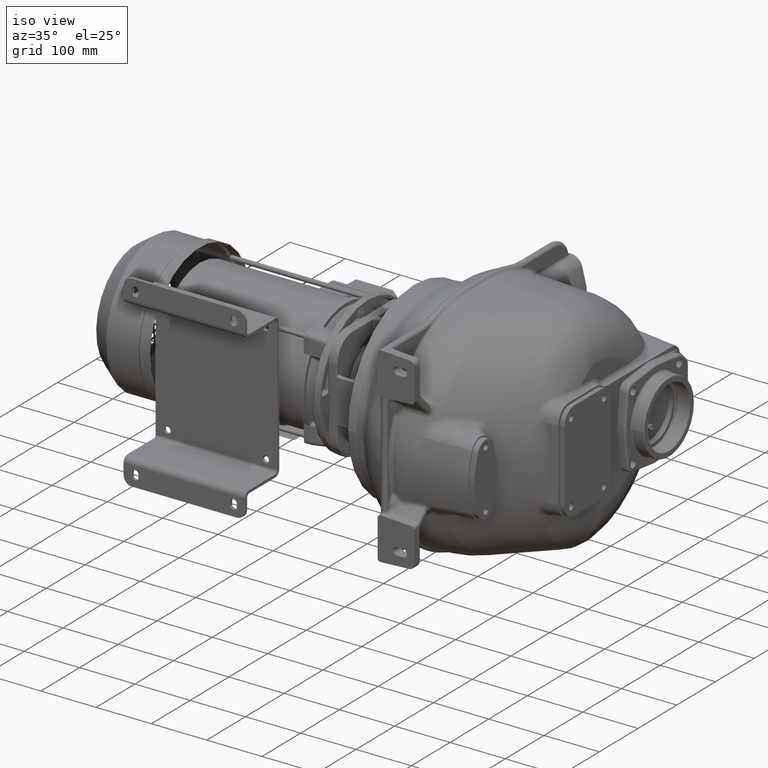
[diagram: clean part render]
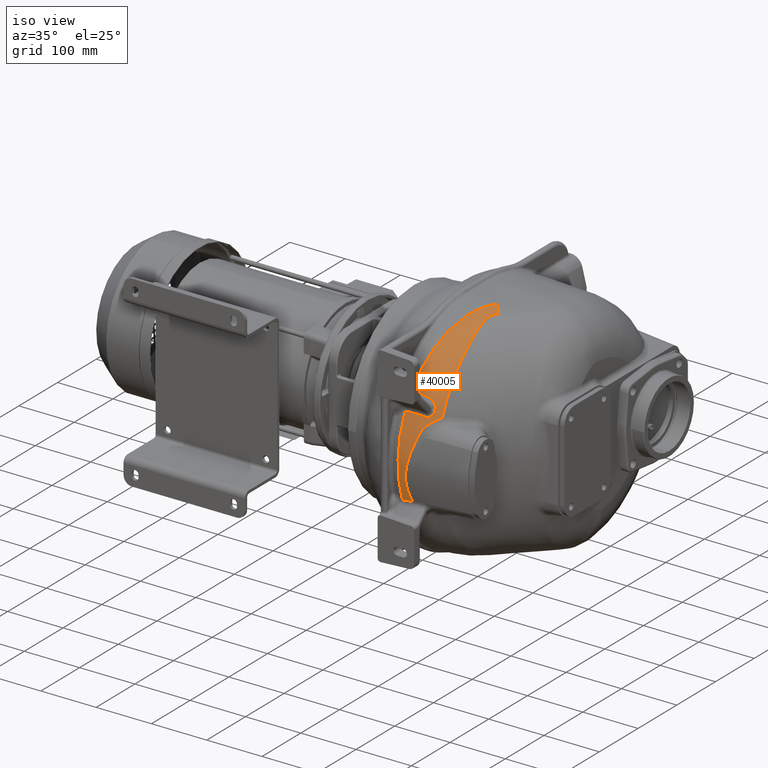
[diagram: same view with one face highlighted and labeled with its STEP entity id]
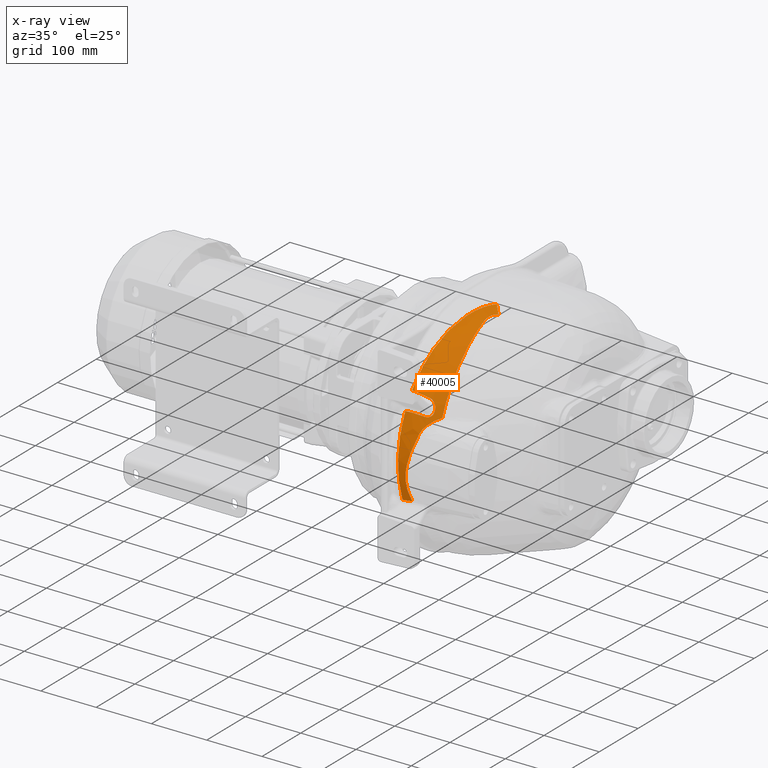
[diagram: x-ray of the same camera — body ghosted, the highlighted face saturated]
A machine part, iso view. The second image highlights one B-rep face of the part: STEP entity #40005.
The next image is the same camera in x-ray: the body ghosted, the highlighted face saturated — about 0% of this face is hidden behind the body in this view.
In plain terms, the highlighted face is a freeform B-spline surface patch.
Its self-contained STEP definition (entity closure, byte-faithful):
#6888=CARTESIAN_POINT('',(2.765051926820E1,2.094463961597E2,1.667076171085E2));
#9197=CARTESIAN_POINT('',(-1.134677503100E1,4.771106503472E1,7.903607097028E1));
#9225=CARTESIAN_POINT('',(2.765051926820E1,2.094463961597E2,1.667076171085E2));
#9226=CARTESIAN_POINT('',(2.597042937343E1,2.068842934249E2,1.667662854166E2));
#9227=CARTESIAN_POINT('',(2.287636422112E1,2.017618689938E2,1.667615758440E2));
#9228=CARTESIAN_POINT('',(1.932054923030E1,1.948213442839E2,1.664740113050E2));
#9229=CARTESIAN_POINT('',(1.579908574803E1,1.865961906306E2,1.657924173864E2));
#9230=CARTESIAN_POINT('',(1.249409913463E1,1.772141647065E2,1.645354819147E2));
#9231=CARTESIAN_POINT('',(9.364650638356E0,1.667600532220E2,1.625446236244E2));
#9232=CARTESIAN_POINT('',(6.338031106733E0,1.552184278865E2,1.596110911121E2));
#9233=CARTESIAN_POINT('',(3.384847499387E0,1.425593235448E2,1.554720419576E2));
#9234=CARTESIAN_POINT('',(5.286228401682E-1,1.287614864655E2,1.497905588020E2));
#9235=CARTESIAN_POINT('',(-2.209114787959E0,1.138528722362E2,1.421527928763E2));
#9236=CARTESIAN_POINT('',(-4.799776057073E0,9.790851907247E1,1.320146563190E2));
#9237=CARTESIAN_POINT('',(-7.203900620956E0,8.118946979094E1,1.187894982109E2));
#9238=CARTESIAN_POINT('',(-9.443963894700E0,6.385888650430E1,1.013987057401E2));
#9239=CARTESIAN_POINT('',(-1.074437106876E1,5.288428206275E1,8.699970865482E1));
#9240=CARTESIAN_POINT('',(-1.134677503100E1,4.771106503472E1,7.903607097028E1));
#9271=CARTESIAN_POINT('',(-1.134677503100E1,4.771106503472E1,7.903607097028E1));
#9272=CARTESIAN_POINT('',(-1.123916990370E1,4.759191186044E1,7.884483420173E1));
#9273=CARTESIAN_POINT('',(-1.102729735821E1,4.735460669032E1,7.846175344989E1));
#9274=CARTESIAN_POINT('',(-1.073029997471E1,4.698896124843E1,7.786599487457E1));
#9275=CARTESIAN_POINT('',(-1.052460328718E1,4.676392549511E1,7.749352743375E1));
#9276=CARTESIAN_POINT('',(-1.043033835734E1,4.664305972109E1,7.729344955673E1));
#9278=CARTESIAN_POINT('',(2.485855763581E1,2.094463945064E2,8.675635101314E1));
#9279=DIRECTION('',(-7.534747434447E-1,-6.569501461359E-1,2.631190762576E-2));
#9280=DIRECTION('',(2.543474338340E-1,-2.543474345891E-1,9.330673959688E-1));
#9281=AXIS2_PLACEMENT_3D('',#9278,#9279,#9280);
#9283=CARTESIAN_POINT('',(3.894829784975E1,5.269792538880E1,4.330793040691E1));
#9284=CARTESIAN_POINT('',(3.678428562423E1,5.027821687758E1,4.265130549541E1));
#9285=CARTESIAN_POINT('',(3.252069443698E1,4.573822372172E1,4.078569686423E1));
#9286=CARTESIAN_POINT('',(2.602506566797E1,3.938859774971E1,3.620501948708E1));
#9287=CARTESIAN_POINT('',(2.094118534325E1,3.469057637385E1,3.110866348420E1));
#9288=CARTESIAN_POINT('',(1.696691727137E1,3.101044469468E1,2.561346584502E1));
#9289=CARTESIAN_POINT('',(1.520249823872E1,2.921023977708E1,2.187502920112E1));
#9290=CARTESIAN_POINT('',(1.453729090815E1,2.844401177182E1,2.001033814342E1));
#9292=CARTESIAN_POINT('',(1.453729090815E1,2.844401177182E1,2.001033814342E1));
#9293=CARTESIAN_POINT('',(1.339653736201E1,2.713127590977E1,1.681762750229E1));
#9294=CARTESIAN_POINT('',(1.094688503238E1,2.454803893367E1,9.986004830696E0));
#9295=CARTESIAN_POINT('',(7.160621281272E0,2.116659382365E1,-1.828521305659E0));
#9296=CARTESIAN_POINT('',(3.297447995554E0,1.852229768970E1,-1.527471614121E1));
#9297=CARTESIAN_POINT('',(-6.011454607176E-1,1.695384674671E1,
-3.124137099016E1));
#9298=CARTESIAN_POINT('',(-3.247737004676E0,1.721664250639E1,
-4.791578680343E1));
#9299=CARTESIAN_POINT('',(-3.564515946790E0,1.879570313717E1,
-6.159130628966E1));
#9300=CARTESIAN_POINT('',(-1.748374005888E0,2.188555014541E1,
-7.658951801609E1));
#9301=CARTESIAN_POINT('',(8.245506846658E-1,2.536904835034E1,
-8.756249692192E1));
#9302=CARTESIAN_POINT('',(2.345955134825E0,2.752901536058E1,-9.320713307862E1));
#9304=CARTESIAN_POINT('',(2.345955134825E0,2.752901536058E1,-9.320713307862E1));
#9305=CARTESIAN_POINT('',(6.577092706626E-1,2.717090622774E1,
-9.344194064902E1));
#9306=CARTESIAN_POINT('',(-2.750078900909E0,2.654026646086E1,
-9.381903875894E1));
#9307=CARTESIAN_POINT('',(-7.932870228319E0,2.585682404930E1,
-9.410373371050E1));
#9308=CARTESIAN_POINT('',(-1.142281389447E1,2.557660753485E1,
-9.410650847020E1));
#9309=CARTESIAN_POINT('',(-1.317324710722E1,2.548192013487E1,
-9.406005522483E1));
#9311=CARTESIAN_POINT('',(-1.388268687201E1,2.511901441111E1,
-9.301054245856E1));
#9312=CARTESIAN_POINT('',(-1.380176674401E1,2.515839321338E1,
-9.312570633468E1));
#9313=CARTESIAN_POINT('',(-1.364129065977E1,2.523774494010E1,
-9.335704280777E1));
#9314=CARTESIAN_POINT('',(-1.340502355803E1,2.535952747140E1,
-9.370644750416E1));
#9315=CARTESIAN_POINT('',(-1.324979865217E1,2.544054070172E1,
-9.394228113391E1));
#9316=CARTESIAN_POINT('',(-1.317324710722E1,2.548192013487E1,
-9.406005522483E1));
#9318=CARTESIAN_POINT('',(-1.298819892965E1,3.166643050816E1,4.894748423621E1));
#9319=CARTESIAN_POINT('',(-1.301004039405E1,3.165146443023E1,4.891442529526E1));
#9320=CARTESIAN_POINT('',(-1.305427932141E1,3.162186526211E1,4.884774033519E1));
#9321=CARTESIAN_POINT('',(-1.312050687576E1,3.157691298588E1,4.874863878347E1));
#9322=CARTESIAN_POINT('',(-1.316500241695E1,3.154720236175E1,4.868255286070E1));
#9323=CARTESIAN_POINT('',(-1.318730249054E1,3.153236200208E1,4.864956174791E1));
#9325=CARTESIAN_POINT('',(-1.298819892965E1,3.166643050816E1,4.894748423621E1));
#9326=CARTESIAN_POINT('',(-9.473977947897E0,3.185299094127E1,4.905157694704E1));
#9327=CARTESIAN_POINT('',(-2.483305553464E0,3.257237995764E1,4.889717918356E1));
#9328=CARTESIAN_POINT('',(7.714400132779E0,3.465860571215E1,4.759599867975E1));
#9329=CARTESIAN_POINT('',(1.420995928872E1,3.669431264595E1,4.603159765369E1));
#9330=CARTESIAN_POINT('',(1.735365256109E1,3.786396984420E1,4.508180123484E1));
#9332=CARTESIAN_POINT('',(1.735365256109E1,3.786396984420E1,4.508180123484E1));
#9333=CARTESIAN_POINT('',(1.844281171264E1,3.826923330447E1,4.475286480554E1));
#9334=CARTESIAN_POINT('',(2.049626465511E1,3.920090716737E1,4.439734026903E1));
#9335=CARTESIAN_POINT('',(2.331563467734E1,4.094397009919E1,4.468570383350E1));
#9336=CARTESIAN_POINT('',(2.555175350572E1,4.276691748814E1,4.572606068278E1));
#9337=CARTESIAN_POINT('',(2.723380612101E1,4.457876798083E1,4.740584424288E1));
#9338=CARTESIAN_POINT('',(2.833387161725E1,4.633801091403E1,4.975501646649E1));
#9339=CARTESIAN_POINT('',(2.860478850510E1,4.737158855167E1,5.167565599516E1));
#9340=CARTESIAN_POINT('',(2.861104003838E1,4.785401358948E1,5.274324068427E1));
#9342=CARTESIAN_POINT('',(2.861104003838E1,4.785401358948E1,5.274324068427E1));
#9343=CARTESIAN_POINT('',(2.861255530709E1,4.797272529263E1,5.300602082647E1));
#9344=CARTESIAN_POINT('',(2.861560497229E1,4.821127898223E1,5.353103534002E1));
#9345=CARTESIAN_POINT('',(2.862021840315E1,4.857234256027E1,5.431660228225E1));
#9346=CARTESIAN_POINT('',(2.862332569107E1,4.881522633850E1,5.483904911548E1));
#9347=CARTESIAN_POINT('',(2.862488676646E1,4.893720854929E1,5.509995083939E1));
#9349=CARTESIAN_POINT('',(2.862488676646E1,4.893720854929E1,5.509995083939E1));
#9350=CARTESIAN_POINT('',(2.863098631917E1,4.941907331743E1,5.613073716895E1));
#9351=CARTESIAN_POINT('',(2.840030666053E1,5.024222359982E1,5.822411536837E1));
#9352=CARTESIAN_POINT('',(2.730076084167E1,5.114534458458E1,6.161927002656E1));
#9353=CARTESIAN_POINT('',(2.551282967563E1,5.161327660009E1,6.485021326966E1));
#9354=CARTESIAN_POINT('',(2.318963248065E1,5.166647148779E1,6.766831151732E1));
#9355=CARTESIAN_POINT('',(2.045134492707E1,5.132371566905E1,6.990207770495E1));
#9356=CARTESIAN_POINT('',(1.851429722975E1,5.086734092824E1,7.088821267795E1));
#9357=CARTESIAN_POINT('',(1.750357245421E1,5.057598840318E1,7.125863713254E1));
#9359=CARTESIAN_POINT('',(1.750357245421E1,5.057598840318E1,7.125863713254E1));
#9360=CARTESIAN_POINT('',(1.458137310056E1,4.973348129322E1,7.232934049539E1));
#9361=CARTESIAN_POINT('',(8.571899222718E0,4.830984611704E1,7.421726998191E1));
#9362=CARTESIAN_POINT('',(-8.151850368309E-1,4.697797386866E1,
7.622835147922E1));
#9363=CARTESIAN_POINT('',(-7.210992096064E0,4.666674305155E1,7.704117308797E1));
#9364=CARTESIAN_POINT('',(-1.043033835734E1,4.664305972109E1,7.729344955673E1));
#9485=CARTESIAN_POINT('',(4.520635427036E1,1.890986014203E2,1.614017426234E2));
#9486=CARTESIAN_POINT('',(4.415391228091E1,1.885123326269E2,1.615288203693E2));
#9487=CARTESIAN_POINT('',(4.226341754236E1,1.872749555819E2,1.617033680343E2));
#9488=CARTESIAN_POINT('',(4.003427339194E1,1.851736278024E2,1.617371437509E2));
#9489=CARTESIAN_POINT('',(3.847518603649E1,1.830585773640E2,1.615893276357E2));
#9490=CARTESIAN_POINT('',(3.731014338258E1,1.808491187067E2,1.613067360780E2));
#9491=CARTESIAN_POINT('',(3.637606101950E1,1.782622964050E2,1.608469302295E2));
#9492=CARTESIAN_POINT('',(3.569344380103E1,1.752491385845E2,1.601711622725E2));
#9493=CARTESIAN_POINT('',(3.527577757026E1,1.718706652940E2,1.592653558749E2));
#9494=CARTESIAN_POINT('',(3.508658729349E1,1.681646506961E2,1.581197948604E2));
#9495=CARTESIAN_POINT('',(3.508932467571E1,1.641491582646E2,1.567163651043E2));
#9496=CARTESIAN_POINT('',(3.521772590018E1,1.598174897894E2,1.550381928901E2));
#9497=CARTESIAN_POINT('',(3.547989839304E1,1.551656660936E2,1.530377291114E2));
#9498=CARTESIAN_POINT('',(3.579670090282E1,1.501690216516E2,1.506896999904E2));
#9499=CARTESIAN_POINT('',(3.617063862887E1,1.448136061997E2,1.479323925781E2));
#9500=CARTESIAN_POINT('',(3.649120278296E1,1.390599039887E2,1.447437689880E2));
#9501=CARTESIAN_POINT('',(3.679989696309E1,1.328967404753E2,1.410329726976E2));
#9502=CARTESIAN_POINT('',(3.708593986782E1,1.263087689865E2,1.367161146709E2));
#9503=CARTESIAN_POINT('',(3.735484555986E1,1.192885872770E2,1.316863394657E2));
#9504=CARTESIAN_POINT('',(3.760942852286E1,1.118372829647E2,1.258172184914E2));
#9505=CARTESIAN_POINT('',(3.784708753947E1,1.039651966032E2,1.189612713214E2));
#9506=CARTESIAN_POINT('',(3.808242362666E1,9.570395685943E1,1.109282752377E2));
#9507=CARTESIAN_POINT('',(3.833001129298E1,8.711901567223E1,1.014881485729E2));
#9508=CARTESIAN_POINT('',(3.857315577079E1,7.831632599131E1,9.038767655942E1));
#9509=CARTESIAN_POINT('',(3.876836055068E1,6.942808464472E1,7.732640014443E1));
#9510=CARTESIAN_POINT('',(3.892780249823E1,6.073169265222E1,6.195876942802E1));
#9511=CARTESIAN_POINT('',(3.894965944474E1,5.524282776100E1,4.984005313277E1));
#9512=CARTESIAN_POINT('',(3.894829784975E1,5.269792538880E1,4.330793040691E1));
#9519=CARTESIAN_POINT('',(4.520635427036E1,1.890986014203E2,1.614017426234E2));
#10089=CARTESIAN_POINT('',(-1.318730249054E1,3.153236200208E1,
4.864956174791E1));
#10096=CARTESIAN_POINT('',(-1.318730249054E1,3.153236200208E1,
4.864956174791E1));
#10097=CARTESIAN_POINT('',(-1.359885961389E1,2.781120123121E1,
3.991407528546E1));
#10098=CARTESIAN_POINT('',(-1.426910705392E1,2.159099028995E1,
2.184947650105E1));
#10099=CARTESIAN_POINT('',(-1.479332424243E1,1.616407188940E1,
-6.470930566921E0));
#10100=CARTESIAN_POINT('',(-1.491006854049E1,1.479349278310E1,
-3.551539445035E1));
#10101=CARTESIAN_POINT('',(-1.464060708791E1,1.756243902465E1,
-6.461354966576E1));
#10102=CARTESIAN_POINT('',(-1.418371323044E1,2.215375210376E1,
-8.366773731642E1));
#10103=CARTESIAN_POINT('',(-1.388268687201E1,2.511901441111E1,
-9.301054245856E1));
#10110=CARTESIAN_POINT('',(-1.388268687201E1,2.511901441111E1,
-9.301054245856E1));
#10399=CARTESIAN_POINT('',(2.345955134825E0,2.752901536058E1,
-9.320713307862E1));
#18560=VERTEX_POINT('',#9197);
#18585=VERTEX_POINT('',#10089);
#18602=VERTEX_POINT('',#10110);
#18724=VERTEX_POINT('',#9519);
#18725=VERTEX_POINT('',#6888);
#18729=VERTEX_POINT('',#9283);
#18730=VERTEX_POINT('',#9290);
#18741=VERTEX_POINT('',#9276);
#18742=VERTEX_POINT('',#9316);
#18774=VERTEX_POINT('',#9349);
#18775=VERTEX_POINT('',#9357);
#18777=VERTEX_POINT('',#9342);
#18779=VERTEX_POINT('',#9332);
#18783=VERTEX_POINT('',#10399);
#18798=VERTEX_POINT('',#9318);
#39805=CARTESIAN_POINT('',(4.818283023571E1,1.893595283359E2,1.606375556109E2));
#39806=CARTESIAN_POINT('',(4.741014862219E1,1.890151071851E2,1.607609996732E2));
#39807=CARTESIAN_POINT('',(4.561954901027E1,1.881340247064E2,1.610195903195E2));
#39808=CARTESIAN_POINT('',(4.312084169827E1,1.865208922688E2,1.612647547369E2));
#39809=CARTESIAN_POINT('',(4.090858919170E1,1.844708941607E2,1.613091415170E2));
#39810=CARTESIAN_POINT('',(3.924986512763E1,1.822324595864E2,1.611497273848E2));
#39811=CARTESIAN_POINT('',(3.800097237923E1,1.797467065990E2,1.608029127346E2));
#39812=CARTESIAN_POINT('',(3.706519436349E1,1.768495867172E2,1.602350928059E2));
#39813=CARTESIAN_POINT('',(3.643005714222E1,1.733994065899E2,1.593804758276E2));
#39814=CARTESIAN_POINT('',(3.609713340335E1,1.693636301654E2,1.581828925670E2));
#39815=CARTESIAN_POINT('',(3.603699757940E1,1.647515109885E2,1.565941005599E2));
#39816=CARTESIAN_POINT('',(3.620209303717E1,1.595587485423E2,1.545540302618E2));
#39817=CARTESIAN_POINT('',(3.653017115012E1,1.538009886462E2,1.520058025770E2));
#39818=CARTESIAN_POINT('',(3.697764248245E1,1.475067901766E2,1.488799170750E2));
#39819=CARTESIAN_POINT('',(3.739063626984E1,1.407689476896E2,1.451983416702E2));
#39820=CARTESIAN_POINT('',(3.775831793535E1,1.335831902183E2,1.408839755539E2));
#39821=CARTESIAN_POINT('',(3.809070753698E1,1.258967117252E2,1.357931367231E2));
#39822=CARTESIAN_POINT('',(3.839667495630E1,1.176266085421E2,1.297181967071E2));
#39823=CARTESIAN_POINT('',(3.867546448380E1,1.088754636073E2,1.225310639954E2));
#39824=CARTESIAN_POINT('',(3.892074802631E1,1.000875564349E2,1.143999377014E2));
#39825=CARTESIAN_POINT('',(3.914496638022E1,9.181348098756E1,1.057405072871E2));
#39826=CARTESIAN_POINT('',(3.934961174998E1,8.441375740967E1,9.699866393732E1));
#39827=CARTESIAN_POINT('',(3.950527151795E1,7.796398182078E1,8.847427555559E1));
#39828=CARTESIAN_POINT('',(3.962371052240E1,7.233131430658E1,8.018866653476E1));
#39829=CARTESIAN_POINT('',(3.971383776022E1,6.730820373278E1,7.198466076222E1));
#39830=CARTESIAN_POINT('',(3.978375472693E1,6.272147616018E1,6.363410804317E1));
#39831=CARTESIAN_POINT('',(3.981786815731E1,5.852184731899E1,5.508184235564E1));
#39832=CARTESIAN_POINT('',(3.982369841264E1,5.471845666730E1,4.635132798652E1));
#39833=CARTESIAN_POINT('',(3.981304428062E1,5.131007500360E1,3.742636958886E1));
#39834=CARTESIAN_POINT('',(3.979389423848E1,4.828402533207E1,2.823463009934E1));
#39835=CARTESIAN_POINT('',(3.977200154221E1,4.564892984664E1,1.872147161902E1));
#39836=CARTESIAN_POINT('',(3.975508420098E1,4.343982036209E1,8.892741572093E0));
#39837=CARTESIAN_POINT('',(3.975017019092E1,4.170148233002E1,
-1.203209766268E0));
#39838=CARTESIAN_POINT('',(3.975694154564E1,4.046827684290E1,
-1.149346999821E1));
#39839=CARTESIAN_POINT('',(3.976632237543E1,3.975937748904E1,
-2.192492531119E1));
#39840=CARTESIAN_POINT('',(3.977097351560E1,3.958538310850E1,
-3.234436201066E1));
#39841=CARTESIAN_POINT('',(3.977377115836E1,3.993529061071E1,
-4.262371113246E1));
#39842=CARTESIAN_POINT('',(3.977544172064E1,4.077792546053E1,
-5.268372363943E1));
#39843=CARTESIAN_POINT('',(3.977759385576E1,4.208532237425E1,
-6.253144587623E1));
#39844=CARTESIAN_POINT('',(3.977921637157E1,4.383799693893E1,
-7.218174352843E1));
#39845=CARTESIAN_POINT('',(3.977912010863E1,4.573104186514E1,
-8.039653082484E1));
#39846=CARTESIAN_POINT('',(3.977799703089E1,4.707117521147E1,
-8.536644194392E1));
#39847=CARTESIAN_POINT('',(3.977739732164E1,4.759824501838E1,
-8.721919384507E1));
#39848=CARTESIAN_POINT('',(3.577625925023E1,2.047447113260E2,1.687458818321E2));
#39849=CARTESIAN_POINT('',(3.485783541664E1,2.043113345905E2,1.688141676485E2));
#39850=CARTESIAN_POINT('',(3.269946589780E1,2.031874643125E2,1.689563355084E2));
#39851=CARTESIAN_POINT('',(2.957339442438E1,2.010776332296E2,1.690895449105E2));
#39852=CARTESIAN_POINT('',(2.665337809038E1,1.983473385296E2,1.691142270983E2));
#39853=CARTESIAN_POINT('',(2.433155885618E1,1.953510749212E2,1.690259380495E2));
#39854=CARTESIAN_POINT('',(2.246880239164E1,1.920386144477E2,1.688268031913E2));
#39855=CARTESIAN_POINT('',(2.096122649139E1,1.882231192020E2,1.684870823515E2));
#39856=CARTESIAN_POINT('',(1.981627078107E1,1.837616038598E2,1.679504578377E2));
#39857=CARTESIAN_POINT('',(1.906696750601E1,1.786530176419E2,1.671572237034E2));
#39858=CARTESIAN_POINT('',(1.870085130211E1,1.729367489331E2,1.660458580916E2));
#39859=CARTESIAN_POINT('',(1.866872111667E1,1.666135451110E2,1.645396160148E2));
#39860=CARTESIAN_POINT('',(1.889815562022E1,1.596932928399E2,1.625566721498E2));
#39861=CARTESIAN_POINT('',(1.933947627568E1,1.522020265515E2,1.600070195448E2));
#39862=CARTESIAN_POINT('',(1.978887573572E1,1.441857748528E2,1.568394070179E2));
#39863=CARTESIAN_POINT('',(2.023018415220E1,1.356323404061E2,1.529518253697E2));
#39864=CARTESIAN_POINT('',(2.067600272057E1,1.264817644195E2,1.481838554160E2));
#39865=CARTESIAN_POINT('',(2.113784765290E1,1.166378871355E2,1.423041869451E2));
#39866=CARTESIAN_POINT('',(2.161322507760E1,1.062251623907E2,1.351482203958E2));
#39867=CARTESIAN_POINT('',(2.208230395875E1,9.577484382115E1,1.268562762907E2));
#39868=CARTESIAN_POINT('',(2.254326305909E1,8.595130700991E1,1.178712803019E2));
#39869=CARTESIAN_POINT('',(2.298303546926E1,7.718702925694E1,1.086988301976E2));
#39870=CARTESIAN_POINT('',(2.335138298406E1,6.955417453998E1,9.966320771265E1));
#39871=CARTESIAN_POINT('',(2.366030259671E1,6.289360074950E1,9.081321233090E1));
#39872=CARTESIAN_POINT('',(2.392362164990E1,5.695874812863E1,8.199958999768E1));
#39873=CARTESIAN_POINT('',(2.415590969292E1,5.154607500458E1,7.299410265758E1));
#39874=CARTESIAN_POINT('',(2.433532573561E1,4.658854282440E1,6.371974723868E1));
#39875=CARTESIAN_POINT('',(2.446813732313E1,4.209620716361E1,5.420041926162E1));
#39876=CARTESIAN_POINT('',(2.456837756023E1,3.806994268974E1,4.442813557159E1));
#39877=CARTESIAN_POINT('',(2.464558355160E1,3.449566936583E1,3.432944371702E1));
#39878=CARTESIAN_POINT('',(2.470589159463E1,3.138378999252E1,2.384712020564E1));
#39879=CARTESIAN_POINT('',(2.475693164793E1,2.877606799723E1,1.299101739610E1));
#39880=CARTESIAN_POINT('',(2.480641097943E1,2.672679198422E1,1.831178226853E0));
#39881=CARTESIAN_POINT('',(2.485330360763E1,2.527591472510E1,
-9.538133383281E0));
#39882=CARTESIAN_POINT('',(2.488687944352E1,2.444391524283E1,
-2.104163352371E1));
#39883=CARTESIAN_POINT('',(2.489751012531E1,2.424001184948E1,
-3.253490663536E1));
#39884=CARTESIAN_POINT('',(2.488904911356E1,2.465088020681E1,
-4.386843924794E1));
#39885=CARTESIAN_POINT('',(2.486336238190E1,2.563904166969E1,
-5.495249376217E1));
#39886=CARTESIAN_POINT('',(2.482331518730E1,2.717116988385E1,
-6.579218685823E1));
#39887=CARTESIAN_POINT('',(2.476818626502E1,2.922321550103E1,
-7.639610030057E1));
#39888=CARTESIAN_POINT('',(2.470664284337E1,3.143765044674E1,
-8.540492364229E1));
#39889=CARTESIAN_POINT('',(2.466197664792E1,3.300421649115E1,
-9.084544349986E1));
#39890=CARTESIAN_POINT('',(2.464424842272E1,3.362018311720E1,
-9.287215670780E1));
#39891=CARTESIAN_POINT('',(2.212002431107E1,2.211726353879E2,1.687307252371E2));
#39892=CARTESIAN_POINT('',(2.108259773190E1,2.206398679477E2,1.687384160979E2));
#39893=CARTESIAN_POINT('',(1.861738287550E1,2.192547004797E2,1.687527947055E2));
#39894=CARTESIAN_POINT('',(1.494214331412E1,2.166480628328E2,1.687633095689E2));
#39895=CARTESIAN_POINT('',(1.136989263464E1,2.132783700133E2,1.687662948917E2));
#39896=CARTESIAN_POINT('',(8.408340546942E0,2.095996260414E2,1.687562501982E2));
#39897=CARTESIAN_POINT('',(5.926053870248E0,2.055662004332E2,1.687207238285E2));
#39898=CARTESIAN_POINT('',(3.810180441214E0,2.009723511560E2,1.686359657483E2));
#39899=CARTESIAN_POINT('',(2.082339826414E0,1.956782409013E2,1.684590953315E2));
#39900=CARTESIAN_POINT('',(8.046522819842E-1,1.897123029589E2,
1.681306800108E2));
#39901=CARTESIAN_POINT('',(-1.653025114196E-2,1.831389317798E2,
1.675793660574E2));
#39902=CARTESIAN_POINT('',(-4.283942658663E-1,1.759600272189E2,
1.667157328727E2));
#39903=CARTESIAN_POINT('',(-5.075250229611E-1,1.681748147930E2,
1.654364280508E2));
#39904=CARTESIAN_POINT('',(-3.048660553779E-1,1.598025787631E2,
1.636348652767E2));
#39905=CARTESIAN_POINT('',(-5.613194435309E-2,1.508312703205E2,
1.611830141295E2));
#39906=CARTESIAN_POINT('',(2.199586665670E-1,1.412389005618E2,
1.579556685675E2));
#39907=CARTESIAN_POINT('',(5.378687671592E-1,1.309593948719E2,
1.537807541579E2));
#39908=CARTESIAN_POINT('',(9.106840322717E-1,1.198851513273E2,
1.484107092691E2));
#39909=CARTESIAN_POINT('',(1.338948761872E0,1.081563197165E2,1.416464312273E2));
#39910=CARTESIAN_POINT('',(1.802181186954E0,9.637317157711E1,1.335870743690E2));
#39911=CARTESIAN_POINT('',(2.294357318496E0,8.529689124818E1,1.246813868703E2));
#39912=CARTESIAN_POINT('',(2.791915778808E0,7.542386112277E1,1.154756489141E2));
#39913=CARTESIAN_POINT('',(3.225216154496E0,6.682307483135E1,1.063050419799E2));
#39914=CARTESIAN_POINT('',(3.600546309018E0,5.931684042825E1,9.724702597872E1));
#39915=CARTESIAN_POINT('',(3.930066079502E0,5.262854362211E1,8.816875760224E1));
#39916=CARTESIAN_POINT('',(4.229467967371E0,4.653128040857E1,7.885307737171E1));
#39917=CARTESIAN_POINT('',(4.470752160848E0,4.094183645727E1,6.920134242826E1));
#39918=CARTESIAN_POINT('',(4.658441156717E0,3.587169908372E1,5.923645305750E1));
#39919=CARTESIAN_POINT('',(4.807433977278E0,3.132491385207E1,4.896013111409E1));
#39920=CARTESIAN_POINT('',(4.927677851214E0,2.728712607388E1,3.830106804636E1));
#39921=CARTESIAN_POINT('',(5.025173207774E0,2.377088775836E1,2.720166932837E1));
#39922=CARTESIAN_POINT('',(5.107372043428E0,2.082432233180E1,1.567584449735E1));
#39923=CARTESIAN_POINT('',(5.182497734614E0,1.851067736434E1,3.815413380619E0));
#39924=CARTESIAN_POINT('',(5.248959475853E0,1.687501484968E1,
-8.264904681694E0));
#39925=CARTESIAN_POINT('',(5.294711440226E0,1.593880501249E1,
-2.046736858202E1));
#39926=CARTESIAN_POINT('',(5.308378409844E0,1.570959823009E1,
-3.266443822353E1));
#39927=CARTESIAN_POINT('',(5.294375248814E0,1.617225814702E1,
-4.468841573238E1));
#39928=CARTESIAN_POINT('',(5.255177161747E0,1.728389111316E1,
-5.644123403390E1));
#39929=CARTESIAN_POINT('',(5.194438625279E0,1.900656222321E1,
-6.792514589464E1));
#39930=CARTESIAN_POINT('',(5.111644994849E0,2.131203748377E1,
-7.914069474514E1));
#39931=CARTESIAN_POINT('',(5.020422552441E0,2.379803619339E1,
-8.865098784540E1));
#39932=CARTESIAN_POINT('',(4.954948108609E0,2.555559480688E1,
-9.438418576450E1));
#39933=CARTESIAN_POINT('',(4.929073839683E0,2.624649006700E1,
-9.651837997774E1));
#39934=CARTESIAN_POINT('',(9.268141243183E0,2.361723986848E2,1.605943655090E2));
#39935=CARTESIAN_POINT('',(8.156350434902E0,2.355447546415E2,1.605451387097E2));
#39936=CARTESIAN_POINT('',(5.491367002453E0,2.339190819496E2,1.604395822075E2));
#39937=CARTESIAN_POINT('',(1.427755055893E0,2.308902538233E2,1.603351173285E2));
#39938=CARTESIAN_POINT('',(-2.643098801486E0,2.270182323629E2,
1.603176769098E2));
#39939=CARTESIAN_POINT('',(-6.124800072911E0,2.228350076463E2,
1.603812272158E2));
#39940=CARTESIAN_POINT('',(-9.139100756559E0,2.182947986457E2,
1.605006298996E2));
#39941=CARTESIAN_POINT('',(-1.180827815017E1,2.131796878465E2,
1.606593496458E2));
#39942=CARTESIAN_POINT('',(-1.410439915485E1,2.073569524563E2,
1.608298848317E2));
#39943=CARTESIAN_POINT('',(-1.594300213860E1,2.008780739715E2,
1.609568452426E2));
#39944=CARTESIAN_POINT('',(-1.729989103919E1,1.938235630068E2,
1.609639715983E2));
#39945=CARTESIAN_POINT('',(-1.821688181768E1,1.861924031349E2,
1.607550740426E2));
#39946=CARTESIAN_POINT('',(-1.876808860319E1,1.779698602613E2,
1.602119300901E2));
#39947=CARTESIAN_POINT('',(-1.900070555284E1,1.691652580341E2,
1.592177949014E2));
#39948=CARTESIAN_POINT('',(-1.915952600879E1,1.597058941086E2,
1.575758469346E2));
#39949=CARTESIAN_POINT('',(-1.926264757329E1,1.495595955563E2,
1.551428838603E2));
#39950=CARTESIAN_POINT('',(-1.929474483537E1,1.386561287430E2,
1.517420109798E2));
#39951=CARTESIAN_POINT('',(-1.924247558590E1,1.268799845028E2,
1.471192899163E2));
#39952=CARTESIAN_POINT('',(-1.909793798695E1,1.143784728236E2,
1.410483093886E2));
#39953=CARTESIAN_POINT('',(-1.886931445509E1,1.017925460344E2,
1.335799617016E2));
#39954=CARTESIAN_POINT('',(-1.855614031902E1,8.994866349190E1,
1.251465280750E2));
#39955=CARTESIAN_POINT('',(-1.818682832047E1,7.938944874127E1,
1.163098279502E2));
#39956=CARTESIAN_POINT('',(-1.784607944177E1,7.018146370780E1,
1.074007890493E2));
#39957=CARTESIAN_POINT('',(-1.753839753148E1,6.213900902461E1,
9.852240627024E1));
#39958=CARTESIAN_POINT('',(-1.725962530211E1,5.496889041575E1,
8.956426742129E1));
#39959=CARTESIAN_POINT('',(-1.699846130349E1,4.843136084404E1,
8.032979172402E1));
#39960=CARTESIAN_POINT('',(-1.678804892563E1,4.243104168421E1,
7.070214860664E1));
#39961=CARTESIAN_POINT('',(-1.662584048201E1,3.698115226829E1,
6.070196634296E1));
#39962=CARTESIAN_POINT('',(-1.649756967377E1,3.208949915432E1,
5.034070489705E1));
#39963=CARTESIAN_POINT('',(-1.639407933791E1,2.774262270206E1,
3.955213644424E1));
#39964=CARTESIAN_POINT('',(-1.631000338711E1,2.395526947154E1,
2.828056579122E1));
#39965=CARTESIAN_POINT('',(-1.623813093160E1,2.078059467531E1,
1.654340166320E1));
#39966=CARTESIAN_POINT('',(-1.616996329686E1,1.828891315675E1,
4.451049569549E0));
#39967=CARTESIAN_POINT('',(-1.610742796687E1,1.652914520334E1,
-7.865288500207E0));
#39968=CARTESIAN_POINT('',(-1.606335014662E1,1.552328892323E1,
-2.028850489923E1));
#39969=CARTESIAN_POINT('',(-1.605004682692E1,1.527719022406E1,
-3.271347410419E1));
#39970=CARTESIAN_POINT('',(-1.606304204481E1,1.577468250665E1,
-4.496030903188E1));
#39971=CARTESIAN_POINT('',(-1.609987332406E1,1.696916068446E1,
-5.692602504412E1));
#39972=CARTESIAN_POINT('',(-1.615668305780E1,1.881952698661E1,
-6.860950750197E1));
#39973=CARTESIAN_POINT('',(-1.623389365514E1,2.129437247157E1,
-8.000271612424E1));
#39974=CARTESIAN_POINT('',(-1.631856299897E1,2.396126315115E1,
-8.964648730821E1));
#39975=CARTESIAN_POINT('',(-1.637898108137E1,2.584564727073E1,
-9.545041130054E1));
#39976=CARTESIAN_POINT('',(-1.640279368638E1,2.658623306535E1,
-9.760944014496E1));
#39977=(BOUNDED_SURFACE()B_SPLINE_SURFACE(3,3,((#39805,#39806,#39807,#39808,
#39809,#39810,#39811,#39812,#39813,#39814,#39815,#39816,#39817,#39818,#39819,
#39820,#39821,#39822,#39823,#39824,#39825,#39826,#39827,#39828,#39829,#39830,
#39831,#39832,#39833,#39834,#39835,#39836,#39837,#39838,#39839,#39840,#39841,
#39842,#39843,#39844,#39845,#39846,#39847),(#39848,#39849,#39850,#39851,#39852,
#39853,#39854,#39855,#39856,#39857,#39858,#39859,#39860,#39861,#39862,#39863,
#39864,#39865,#39866,#39867,#39868,#39869,#39870,#39871,#39872,#39873,#39874,
#39875,#39876,#39877,#39878,#39879,#39880,#39881,#39882,#39883,#39884,#39885,
#39886,#39887,#39888,#39889,#39890),(#39891,#39892,#39893,#39894,#39895,#39896,
#39897,#39898,#39899,#39900,#39901,#39902,#39903,#39904,#39905,#39906,#39907,
#39908,#39909,#39910,#39911,#39912,#39913,#39914,#39915,#39916,#39917,#39918,
#39919,#39920,#39921,#39922,#39923,#39924,#39925,#39926,#39927,#39928,#39929,
#39930,#39931,#39932,#39933),(#39934,#39935,#39936,#39937,#39938,#39939,#39940,
#39941,#39942,#39943,#39944,#39945,#39946,#39947,#39948,#39949,#39950,#39951,
#39952,#39953,#39954,#39955,#39956,#39957,#39958,#39959,#39960,#39961,#39962,
#39963,#39964,#39965,#39966,#39967,#39968,#39969,#39970,#39971,#39972,#39973,
#39974,#39975,#39976)),.UNSPECIFIED.,.F.,.F.,.F.)B_SPLINE_SURFACE_WITH_KNOTS((4,
4),(4,1,1,1,1,1,1,1,1,1,1,1,1,1,1,1,1,1,1,1,1,1,1,1,1,1,1,1,1,1,1,1,1,1,1,1,1,1,
1,1,4),(0.E0,1.E0),(-4.645063466112E-3,0.E0,6.418642974620E-3,1.232361157264E-2,
1.769170541261E-2,2.285665203711E-2,2.847924193533E-2,3.483012227535E-2,
4.186881650556E-2,4.970015379128E-2,5.845723689258E-2,6.822463146023E-2,
7.904561166876E-2,9.094922366456E-2,1.040451140247E-1,1.185362699079E-1,
1.347542206616E-1,1.531594818352E-1,1.730946184853E-1,1.927810334711E-1,
2.113761262660E-1,2.287529684326E-1,2.448640537835E-1,2.602896625190E-1,
2.757785783314E-1,2.914190120960E-1,3.070179477630E-1,3.226984666454E-1,
3.386491612814E-1,3.549909493852E-1,3.717626182490E-1,3.888370301742E-1,
4.060257087933E-1,4.233002087234E-1,4.406259626264E-1,4.576815283450E-1,
4.742794189619E-1,4.906619839896E-1,5.069133758142E-1,5.228317887903E-1,
5.323469681450E-1),.UNSPECIFIED.)GEOMETRIC_REPRESENTATION_ITEM()RATIONAL_B_SPLINE_SURFACE(((1.039071328243E0,1.039071328243E0,1.039071328243E0,1.039071328243E0,
1.039071328243E0,1.039071328243E0,1.039071328243E0,1.039071328243E0,
1.039071328243E0,1.039071328243E0,1.039071328243E0,1.039071328243E0,
1.039071328243E0,1.039071328243E0,1.039071328243E0,1.039071328243E0,
1.039071328243E0,1.039071328243E0,1.039071328243E0,1.039071328243E0,
1.039071328243E0,1.039071328243E0,1.039071328243E0,1.039071328243E0,
1.039071328243E0,1.039071328243E0,1.039071328243E0,1.039071328243E0,
1.039071328243E0,1.039071328243E0,1.039071328243E0,1.039071328243E0,
1.039071328243E0,1.039071328243E0,1.039071328243E0,1.039071328243E0,
1.039071328243E0,1.039071328243E0,1.039071328243E0,1.039071328243E0,
1.039071328243E0,1.039071328243E0,1.039071328243E0),(9.869762239191E-1,
9.869762239191E-1,9.869762239191E-1,9.869762239191E-1,9.869762239191E-1,
9.869762239191E-1,9.869762239191E-1,9.869762239191E-1,9.869762239191E-1,
9.869762239191E-1,9.869762239191E-1,9.869762239191E-1,9.869762239191E-1,
9.869762239191E-1,9.869762239191E-1,9.869762239191E-1,9.869762239191E-1,
9.869762239191E-1,9.869762239191E-1,9.869762239191E-1,9.869762239191E-1,
9.869762239191E-1,9.869762239191E-1,9.869762239191E-1,9.869762239191E-1,
9.869762239191E-1,9.869762239191E-1,9.869762239191E-1,9.869762239191E-1,
9.869762239191E-1,9.869762239191E-1,9.869762239191E-1,9.869762239191E-1,
9.869762239191E-1,9.869762239191E-1,9.869762239191E-1,9.869762239191E-1,
9.869762239191E-1,9.869762239191E-1,9.869762239191E-1,9.869762239191E-1,
9.869762239191E-1,9.869762239191E-1),(9.869762239191E-1,9.869762239191E-1,
9.869762239191E-1,9.869762239191E-1,9.869762239191E-1,9.869762239191E-1,
9.869762239191E-1,9.869762239191E-1,9.869762239191E-1,9.869762239191E-1,
9.869762239191E-1,9.869762239191E-1,9.869762239191E-1,9.869762239191E-1,
9.869762239191E-1,9.869762239191E-1,9.869762239191E-1,9.869762239191E-1,
9.869762239191E-1,9.869762239191E-1,9.869762239191E-1,9.869762239191E-1,
9.869762239191E-1,9.869762239191E-1,9.869762239191E-1,9.869762239191E-1,
9.869762239191E-1,9.869762239191E-1,9.869762239191E-1,9.869762239191E-1,
9.869762239191E-1,9.869762239191E-1,9.869762239191E-1,9.869762239191E-1,
9.869762239191E-1,9.869762239191E-1,9.869762239191E-1,9.869762239191E-1,
9.869762239191E-1,9.869762239191E-1,9.869762239191E-1,9.869762239191E-1,
9.869762239191E-1),(1.039071328243E0,1.039071328243E0,1.039071328243E0,
1.039071328243E0,1.039071328243E0,1.039071328243E0,1.039071328243E0,
1.039071328243E0,1.039071328243E0,1.039071328243E0,1.039071328243E0,
1.039071328243E0,1.039071328243E0,1.039071328243E0,1.039071328243E0,
1.039071328243E0,1.039071328243E0,1.039071328243E0,1.039071328243E0,
1.039071328243E0,1.039071328243E0,1.039071328243E0,1.039071328243E0,
1.039071328243E0,1.039071328243E0,1.039071328243E0,1.039071328243E0,
1.039071328243E0,1.039071328243E0,1.039071328243E0,1.039071328243E0,
1.039071328243E0,1.039071328243E0,1.039071328243E0,1.039071328243E0,
1.039071328243E0,1.039071328243E0,1.039071328243E0,1.039071328243E0,
1.039071328243E0,1.039071328243E0,1.039071328243E0,1.039071328243E0)))REPRESENTATION_ITEM('')SURFACE());
#39978=ORIENTED_EDGE('',*,*,#39798,.F.);
#39979=ORIENTED_EDGE('',*,*,#39717,.F.);
#39981=ORIENTED_EDGE('',*,*,#39980,.F.);
#39983=ORIENTED_EDGE('',*,*,#39982,.T.);
#39985=ORIENTED_EDGE('',*,*,#39984,.T.);
#39987=ORIENTED_EDGE('',*,*,#39986,.T.);
#39989=ORIENTED_EDGE('',*,*,#39988,.T.);
#39991=ORIENTED_EDGE('',*,*,#39990,.F.);
#39993=ORIENTED_EDGE('',*,*,#39992,.F.);
#39995=ORIENTED_EDGE('',*,*,#39994,.F.);
#39997=ORIENTED_EDGE('',*,*,#39996,.T.);
#39998=ORIENTED_EDGE('',*,*,#38997,.T.);
#39999=ORIENTED_EDGE('',*,*,#39040,.T.);
#40000=ORIENTED_EDGE('',*,*,#39095,.T.);
#40002=ORIENTED_EDGE('',*,*,#40001,.T.);
#40003=EDGE_LOOP('',(#39978,#39979,#39981,#39983,#39985,#39987,#39989,#39991,
#39993,#39995,#39997,#39998,#39999,#40000,#40002));
#40004=FACE_OUTER_BOUND('',#40003,.F.);
#40005=ADVANCED_FACE('',(#40004),#39977,.T.);
#9241=B_SPLINE_CURVE_WITH_KNOTS('',3,(#9225,#9226,#9227,#9228,#9229,#9230,#9231,
#9232,#9233,#9234,#9235,#9236,#9237,#9238,#9239,#9240),.UNSPECIFIED.,.F.,.F.,(4,
1,1,1,1,1,1,1,1,1,1,1,1,4),(0.E0,7.692307692308E-2,1.538461538462E-1,
2.307692307692E-1,3.076923076923E-1,3.846153846154E-1,4.615384615385E-1,
5.384615384615E-1,6.153846153846E-1,6.923076923077E-1,7.692307692308E-1,
8.461538461538E-1,9.230769230769E-1,1.E0),.UNSPECIFIED.);
#9277=B_SPLINE_CURVE_WITH_KNOTS('',3,(#9271,#9272,#9273,#9274,#9275,#9276),
.UNSPECIFIED.,.F.,.F.,(4,1,1,4),(0.E0,3.333333333333E-1,6.666666666667E-1,1.E0),
.UNSPECIFIED.);
#9282=CIRCLE('',#9281,8.000000000001E1);
#9291=B_SPLINE_CURVE_WITH_KNOTS('',3,(#9283,#9284,#9285,#9286,#9287,#9288,#9289,
#9290),.UNSPECIFIED.,.F.,.F.,(4,1,1,1,1,4),(0.E0,2.E-1,4.E-1,6.E-1,8.E-1,1.E0),
.UNSPECIFIED.);
#9303=B_SPLINE_CURVE_WITH_KNOTS('',3,(#9292,#9293,#9294,#9295,#9296,#9297,#9298,
#9299,#9300,#9301,#9302),.UNSPECIFIED.,.F.,.F.,(4,1,1,1,1,1,1,1,4),(0.E0,
1.25E-1,2.5E-1,3.75E-1,5.E-1,6.25E-1,7.5E-1,8.75E-1,1.E0),.UNSPECIFIED.);
#9310=B_SPLINE_CURVE_WITH_KNOTS('',3,(#9304,#9305,#9306,#9307,#9308,#9309),
.UNSPECIFIED.,.F.,.F.,(4,1,1,4),(0.E0,3.333333333333E-1,6.666666666667E-1,1.E0),
.UNSPECIFIED.);
#9317=B_SPLINE_CURVE_WITH_KNOTS('',3,(#9311,#9312,#9313,#9314,#9315,#9316),
.UNSPECIFIED.,.F.,.F.,(4,1,1,4),(0.E0,3.333333333333E-1,6.666666666667E-1,1.E0),
.UNSPECIFIED.);
#9324=B_SPLINE_CURVE_WITH_KNOTS('',3,(#9318,#9319,#9320,#9321,#9322,#9323),
.UNSPECIFIED.,.F.,.F.,(4,1,1,4),(0.E0,3.333333333333E-1,6.666666666667E-1,1.E0),
.UNSPECIFIED.);
#9331=B_SPLINE_CURVE_WITH_KNOTS('',3,(#9325,#9326,#9327,#9328,#9329,#9330),
.UNSPECIFIED.,.F.,.F.,(4,1,1,4),(0.E0,3.333333333333E-1,6.666666666667E-1,1.E0),
.UNSPECIFIED.);
#9341=B_SPLINE_CURVE_WITH_KNOTS('',3,(#9332,#9333,#9334,#9335,#9336,#9337,#9338,
#9339,#9340),.UNSPECIFIED.,.F.,.F.,(4,1,1,1,1,1,4),(0.E0,1.666666666667E-1,
3.333333333333E-1,5.E-1,6.666666666667E-1,8.333333333333E-1,1.E0),
.UNSPECIFIED.);
#9348=B_SPLINE_CURVE_WITH_KNOTS('',3,(#9342,#9343,#9344,#9345,#9346,#9347),
.UNSPECIFIED.,.F.,.F.,(4,1,1,4),(0.E0,3.333333333333E-1,6.666666666667E-1,1.E0),
.UNSPECIFIED.);
#9358=B_SPLINE_CURVE_WITH_KNOTS('',3,(#9349,#9350,#9351,#9352,#9353,#9354,#9355,
#9356,#9357),.UNSPECIFIED.,.F.,.F.,(4,1,1,1,1,1,4),(0.E0,1.666666666667E-1,
3.333333333333E-1,5.E-1,6.666666666667E-1,8.333333333333E-1,1.E0),
.UNSPECIFIED.);
#9365=B_SPLINE_CURVE_WITH_KNOTS('',3,(#9359,#9360,#9361,#9362,#9363,#9364),
.UNSPECIFIED.,.F.,.F.,(4,1,1,4),(0.E0,3.333333333333E-1,6.666666666667E-1,1.E0),
.UNSPECIFIED.);
#9513=B_SPLINE_CURVE_WITH_KNOTS('',3,(#9485,#9486,#9487,#9488,#9489,#9490,#9491,
#9492,#9493,#9494,#9495,#9496,#9497,#9498,#9499,#9500,#9501,#9502,#9503,#9504,
#9505,#9506,#9507,#9508,#9509,#9510,#9511,#9512),.UNSPECIFIED.,.F.,.F.,(4,1,1,1,
1,1,1,1,1,1,1,1,1,1,1,1,1,1,1,1,1,1,1,1,1,4),(0.E0,4.E-2,8.E-2,1.2E-1,1.6E-1,
2.E-1,2.4E-1,2.8E-1,3.2E-1,3.6E-1,4.E-1,4.4E-1,4.8E-1,5.2E-1,5.6E-1,6.E-1,
6.4E-1,6.8E-1,7.2E-1,7.6E-1,8.E-1,8.4E-1,8.8E-1,9.2E-1,9.6E-1,1.E0),
.UNSPECIFIED.);
#10104=B_SPLINE_CURVE_WITH_KNOTS('',3,(#10096,#10097,#10098,#10099,#10100,
#10101,#10102,#10103),.UNSPECIFIED.,.F.,.F.,(4,1,1,1,1,4),(0.E0,2.E-1,4.E-1,
6.E-1,8.E-1,1.E0),.UNSPECIFIED.);
#38997=EDGE_CURVE('',#18779,#18777,#9341,.T.);
#39040=EDGE_CURVE('',#18777,#18774,#9348,.T.);
#39095=EDGE_CURVE('',#18774,#18775,#9358,.T.);
#39717=EDGE_CURVE('',#18725,#18560,#9241,.T.);
#39798=EDGE_CURVE('',#18560,#18741,#9277,.T.);
#39980=EDGE_CURVE('',#18724,#18725,#9282,.T.);
#39982=EDGE_CURVE('',#18724,#18729,#9513,.T.);
#39984=EDGE_CURVE('',#18729,#18730,#9291,.T.);
#39986=EDGE_CURVE('',#18730,#18783,#9303,.T.);
#39988=EDGE_CURVE('',#18783,#18742,#9310,.T.);
#39990=EDGE_CURVE('',#18602,#18742,#9317,.T.);
#39992=EDGE_CURVE('',#18585,#18602,#10104,.T.);
#39994=EDGE_CURVE('',#18798,#18585,#9324,.T.);
#39996=EDGE_CURVE('',#18798,#18779,#9331,.T.);
#40001=EDGE_CURVE('',#18775,#18741,#9365,.T.);